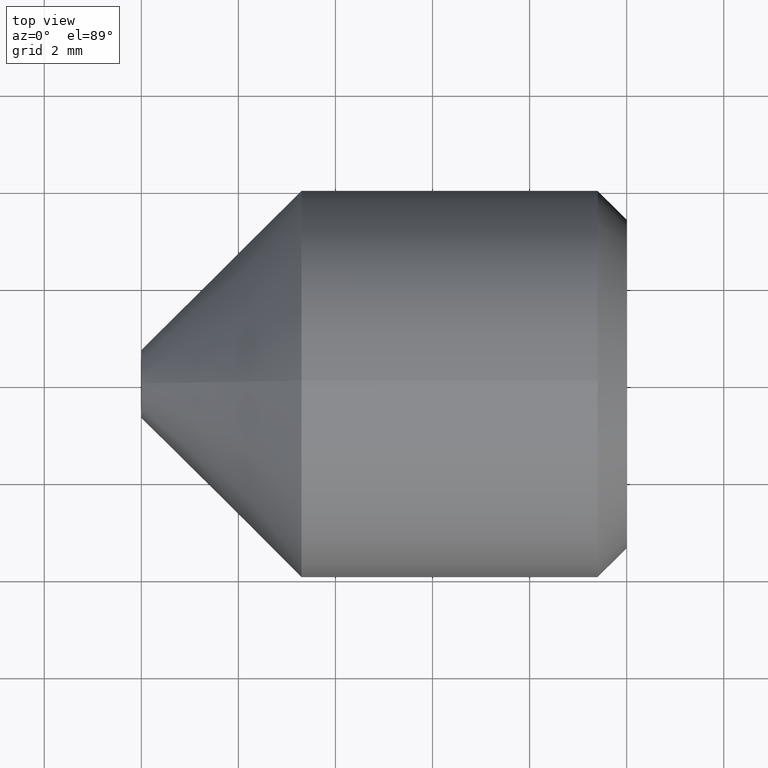
[diagram: clean part render]
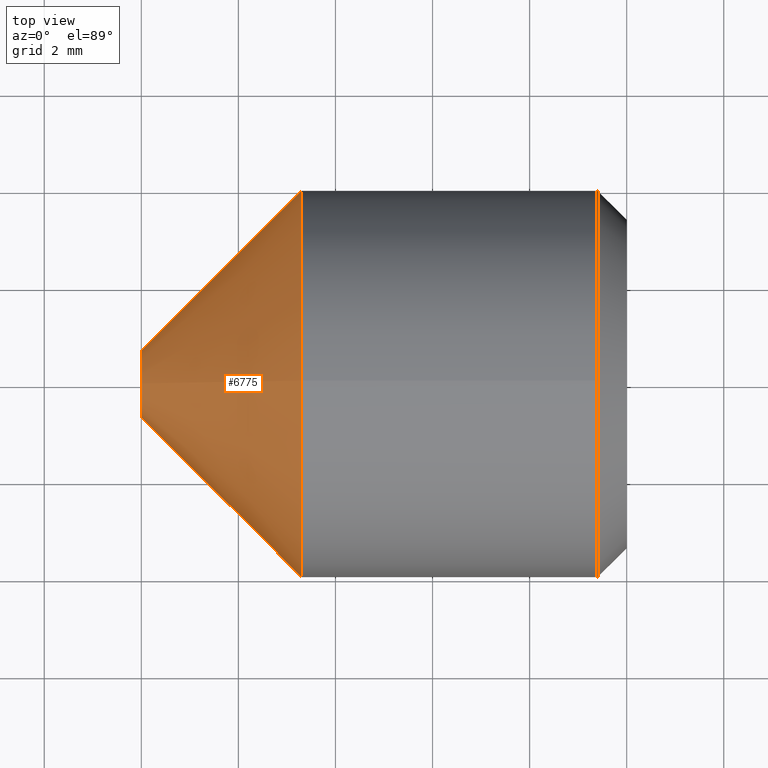
[diagram: same view with one face highlighted and labeled with its STEP entity id]
A machine part, top view. The second image highlights one B-rep face of the part: STEP entity #6775.
In plain terms, the highlighted conical surface has half-angle 45 deg.
Its self-contained STEP definition (entity closure, byte-faithful):
#192 = VERTEX_POINT ( 'NONE', #3710 ) ;
#333 = AXIS2_PLACEMENT_3D ( 'NONE', #530, #11319, #9309 ) ;
#530 = CARTESIAN_POINT ( 'NONE',  ( 3.299999999999963400, 0.0000000000000000000, 0.0000000000000000000 ) ) ;
#1381 = FACE_BOUND ( 'NONE', #2350, .T. ) ;
#1470 = DIRECTION ( 'NONE',  ( 1.000000000000000000, 0.0000000000000000000, 0.0000000000000000000 ) ) ;
#2350 = EDGE_LOOP ( 'NONE', ( #5343 ) ) ;
#2858 = CARTESIAN_POINT ( 'NONE',  ( 2.816687638038912500E-016, 0.0000000000000000000, 0.6999999999999999600 ) ) ;
#3710 = CARTESIAN_POINT ( 'NONE',  ( 3.299999999999963400, 0.0000000000000000000, 4.000000000000000000 ) ) ;
#4389 = AXIS2_PLACEMENT_3D ( 'NONE', #8087, #9938, #4498 ) ;
#4498 = DIRECTION ( 'NONE',  ( 0.0000000000000000000, 0.0000000000000000000, 1.000000000000000000 ) ) ;
#5179 = VERTEX_POINT ( 'NONE', #2858 ) ;
#5343 = ORIENTED_EDGE ( 'NONE', *, *, #9414, .F. ) ;
#6093 = DIRECTION ( 'NONE',  ( 0.0000000000000000000, 0.0000000000000000000, -1.000000000000000000 ) ) ;
#6775 = ADVANCED_FACE ( 'NONE', ( #9590, #1381 ), #10724, .T. ) ;
#7612 = EDGE_CURVE ( 'NONE', #192, #192, #9872, .T. ) ;
#7769 = AXIS2_PLACEMENT_3D ( 'NONE', #10404, #1470, #6093 ) ;
#8087 = CARTESIAN_POINT ( 'NONE',  ( 2.816687638038912500E-016, 0.0000000000000000000, 0.0000000000000000000 ) ) ;
#8426 = ORIENTED_EDGE ( 'NONE', *, *, #7612, .T. ) ;
#8899 = EDGE_LOOP ( 'NONE', ( #8426 ) ) ;
#9309 = DIRECTION ( 'NONE',  ( 0.0000000000000000000, 0.0000000000000000000, 1.000000000000000000 ) ) ;
#9414 = EDGE_CURVE ( 'NONE', #5179, #5179, #9576, .T. ) ;
#9576 = CIRCLE ( 'NONE', #4389, 0.6999999999999999600 ) ;
#9590 = FACE_OUTER_BOUND ( 'NONE', #8899, .T. ) ;
#9872 = CIRCLE ( 'NONE', #333, 4.000000000000000000 ) ;
#9938 = DIRECTION ( 'NONE',  ( -1.000000000000000000, -0.0000000000000000000, -0.0000000000000000000 ) ) ;
#10404 = CARTESIAN_POINT ( 'NONE',  ( 2.816687638038912500E-016, 0.0000000000000000000, 0.0000000000000000000 ) ) ;
#10724 = CONICAL_SURFACE ( 'NONE', #7769, 0.6999999999999999600, 0.7853981633974539400 ) ;
#11319 = DIRECTION ( 'NONE',  ( -1.000000000000000000, -0.0000000000000000000, -0.0000000000000000000 ) ) ;